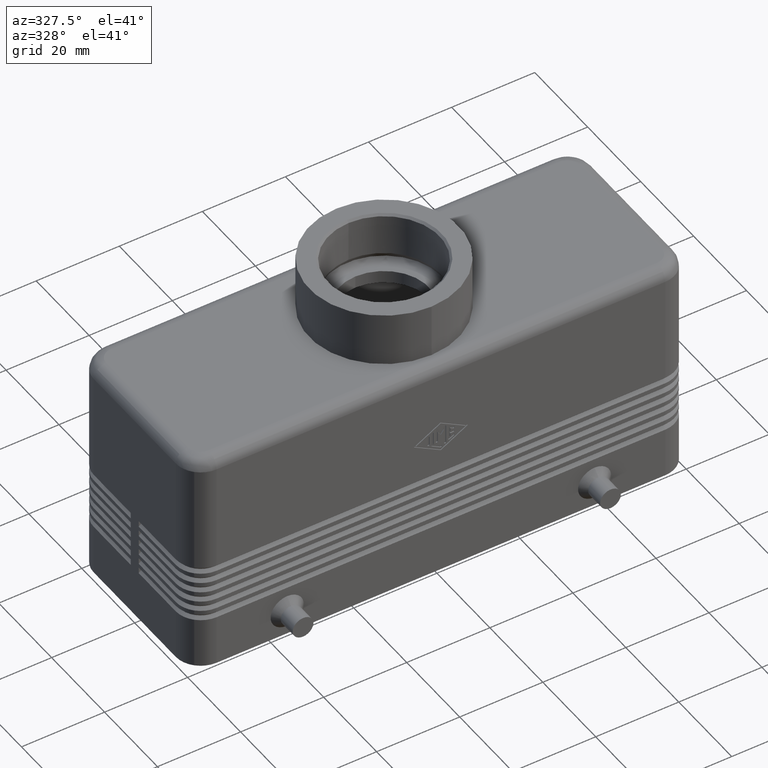
[diagram: clean part render]
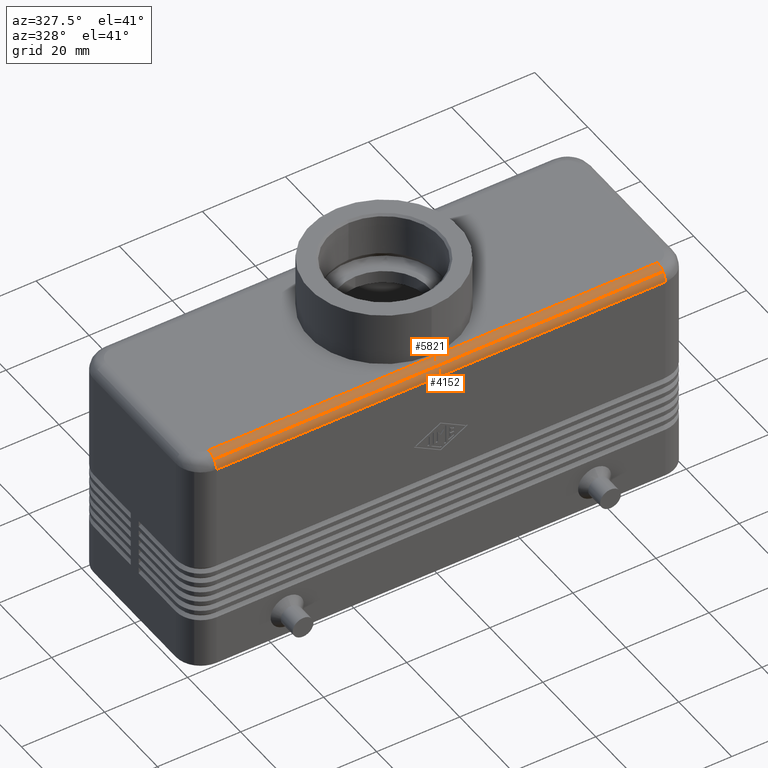
[diagram: same view with one multi-face feature highlighted, each face labeled with its STEP entity id]
A machine part, auxiliary view. The highlighted faces form ONE feature: a constant-radius fillet chain: 2 tangent blend faces with common blend radius 3 mm. The faces share edges in the B-rep.
Their STEP definitions:
[1] entity #5821 (Cylinder):
#4120=CARTESIAN_POINT('',(-53.999999999999986,-20.621320343559645,54.121320343559638));
#4121=VERTEX_POINT('',#4120);
#4122=CARTESIAN_POINT('',(53.999999999999993,-20.621320343559645,54.121320343559638));
#4123=VERTEX_POINT('',#4122);
#4124=CARTESIAN_POINT('',(-53.999999999999986,-20.621320343559645,54.121320343559638));
#4125=DIRECTION('',(1.0,0.0,0.0));
#4126=VECTOR('',#4125,107.999999999999970);
#4127=LINE('',#4124,#4126);
#4128=EDGE_CURVE('',#4121,#4123,#4127,.T.);
#5165=CARTESIAN_POINT('',(-53.999999999999986,-18.500000000000000,55.0));
#5166=VERTEX_POINT('',#5165);
#5174=CARTESIAN_POINT('',(53.999999999999993,-18.500000000000000,55.0));
#5175=VERTEX_POINT('',#5174);
#5176=CARTESIAN_POINT('',(53.999999999999993,-18.500000000000000,55.0));
#5177=DIRECTION('',(-1.0,0.0,0.0));
#5178=VECTOR('',#5177,107.999999999999970);
#5179=LINE('',#5176,#5178);
#5180=EDGE_CURVE('',#5175,#5166,#5179,.T.);
#5798=CARTESIAN_POINT('',(29.999999999999996,-18.500000000000000,52.0));
#5799=DIRECTION('',(1.0,0.0,0.0));
#5800=DIRECTION('',(0.0,-0.707106781186549,0.707106781186546));
#5801=AXIS2_PLACEMENT_3D('',#5798,#5799,#5800);
#5802=CYLINDRICAL_SURFACE('',#5801,3.000000000000000);
#5803=ORIENTED_EDGE('',*,*,#4128,.T.);
#5804=CARTESIAN_POINT('',(53.999999999999993,-18.500000000000000,52.0));
#5805=DIRECTION('',(-1.0,0.0,0.0));
#5806=DIRECTION('',(0.0,-1.0,0.0));
#5807=AXIS2_PLACEMENT_3D('',#5804,#5805,#5806);
#5808=CIRCLE('',#5807,3.000000000000000);
#5809=EDGE_CURVE('',#4123,#5175,#5808,.T.);
#5810=ORIENTED_EDGE('',*,*,#5809,.T.);
#5811=ORIENTED_EDGE('',*,*,#5180,.T.);
#5812=CARTESIAN_POINT('',(-53.999999999999986,-18.500000000000000,52.0));
#5813=DIRECTION('',(1.0,0.0,0.0));
#5814=DIRECTION('',(0.0,0.0,1.0));
#5815=AXIS2_PLACEMENT_3D('',#5812,#5813,#5814);
#5816=CIRCLE('',#5815,2.999999999999998);
#5817=EDGE_CURVE('',#5166,#4121,#5816,.T.);
#5818=ORIENTED_EDGE('',*,*,#5817,.T.);
#5819=EDGE_LOOP('',(#5803,#5810,#5811,#5818));
#5820=FACE_OUTER_BOUND('',#5819,.T.);
#5821=ADVANCED_FACE('',(#5820),#5802,.T.);
[2] entity #4152 (Cylinder):
#1393=CARTESIAN_POINT('',(-53.999999999999986,-21.500000000000000,52.0));
#1394=VERTEX_POINT('',#1393);
#3934=CARTESIAN_POINT('',(53.999999999999993,-21.500000000000000,52.0));
#3935=VERTEX_POINT('',#3934);
#4115=CARTESIAN_POINT('',(29.999999999999996,-18.500000000000000,52.0));
#4116=DIRECTION('',(1.0,0.0,0.0));
#4117=DIRECTION('',(0.0,-0.707106781186549,0.707106781186546));
#4118=AXIS2_PLACEMENT_3D('',#4115,#4116,#4117);
#4119=CYLINDRICAL_SURFACE('',#4118,3.000000000000000);
#4120=CARTESIAN_POINT('',(-53.999999999999986,-20.621320343559645,54.121320343559638));
#4121=VERTEX_POINT('',#4120);
#4122=CARTESIAN_POINT('',(53.999999999999993,-20.621320343559645,54.121320343559638));
#4123=VERTEX_POINT('',#4122);
#4124=CARTESIAN_POINT('',(-53.999999999999986,-20.621320343559645,54.121320343559638));
#4125=DIRECTION('',(1.0,0.0,0.0));
#4126=VECTOR('',#4125,107.999999999999970);
#4127=LINE('',#4124,#4126);
#4128=EDGE_CURVE('',#4121,#4123,#4127,.T.);
#4129=ORIENTED_EDGE('',*,*,#4128,.F.);
#4130=CARTESIAN_POINT('',(-53.999999999999986,-18.500000000000000,52.0));
#4131=DIRECTION('',(1.0,0.0,0.0));
#4132=DIRECTION('',(0.0,0.0,1.0));
#4133=AXIS2_PLACEMENT_3D('',#4130,#4131,#4132);
#4134=CIRCLE('',#4133,2.999999999999998);
#4135=EDGE_CURVE('',#4121,#1394,#4134,.T.);
#4136=ORIENTED_EDGE('',*,*,#4135,.T.);
#4137=CARTESIAN_POINT('',(-53.999999999999986,-21.500000000000000,52.0));
#4138=DIRECTION('',(1.0,0.0,0.0));
#4139=VECTOR('',#4138,107.999999999999970);
#4140=LINE('',#4137,#4139);
#4141=EDGE_CURVE('',#1394,#3935,#4140,.T.);
#4142=ORIENTED_EDGE('',*,*,#4141,.T.);
#4143=CARTESIAN_POINT('',(53.999999999999993,-18.500000000000000,52.0));
#4144=DIRECTION('',(-1.0,0.0,0.0));
#4145=DIRECTION('',(0.0,-1.0,0.0));
#4146=AXIS2_PLACEMENT_3D('',#4143,#4144,#4145);
#4147=CIRCLE('',#4146,3.000000000000000);
#4148=EDGE_CURVE('',#3935,#4123,#4147,.T.);
#4149=ORIENTED_EDGE('',*,*,#4148,.T.);
#4150=EDGE_LOOP('',(#4129,#4136,#4142,#4149));
#4151=FACE_OUTER_BOUND('',#4150,.T.);
#4152=ADVANCED_FACE('',(#4151),#4119,.T.);